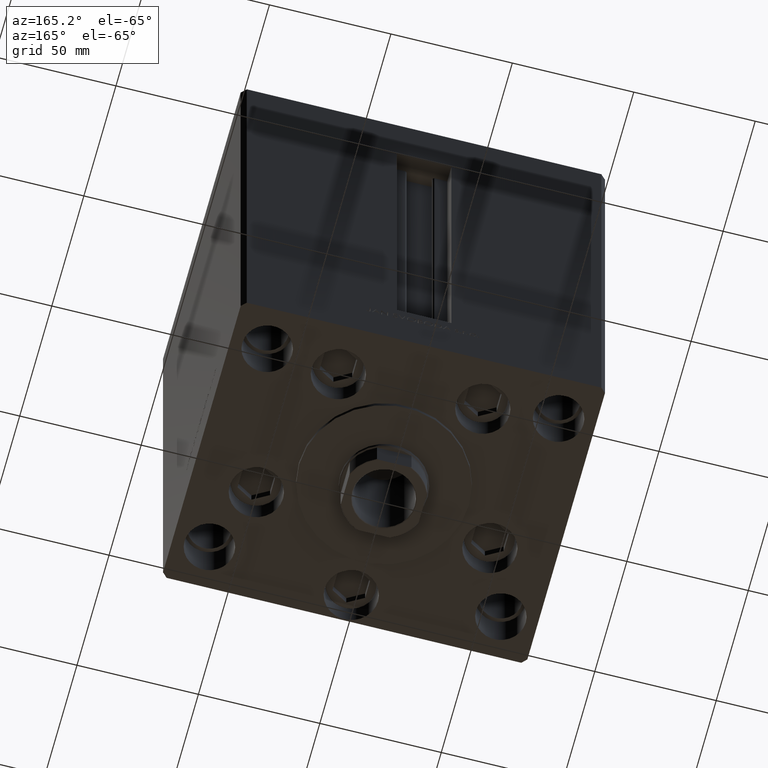
[diagram: clean part render]
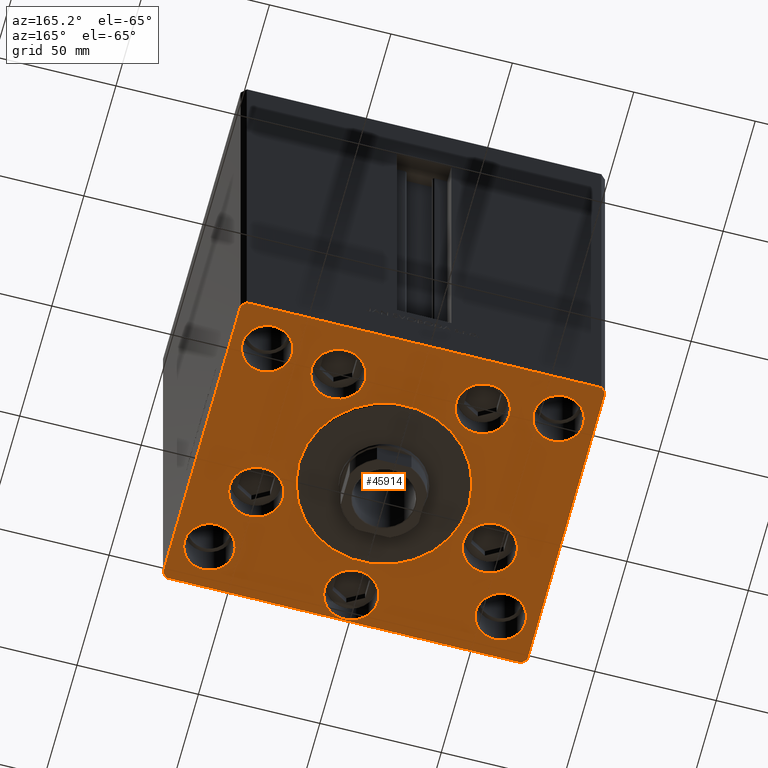
[diagram: same view with one face highlighted and labeled with its STEP entity id]
A machine part, auxiliary view. The second image highlights one B-rep face of the part: STEP entity #45914.
In plain terms, the highlighted planar face has unit normal (0, 0, -1).
Its self-contained STEP definition (entity closure, byte-faithful):
#38 = DIRECTION ( 'NONE',  ( 0.000000000000000000, 0.000000000000000000, 1.000000000000000000 ) ) ;
#225 = FACE_BOUND ( 'NONE', #31982, .T. ) ;
#413 = AXIS2_PLACEMENT_3D ( 'NONE', #3065, #40672, #11201 ) ;
#829 = DIRECTION ( 'NONE',  ( 0.000000000000000000, 0.000000000000000000, 1.000000000000000000 ) ) ;
#955 = ORIENTED_EDGE ( 'NONE', *, *, #39756, .T. ) ;
#974 = ORIENTED_EDGE ( 'NONE', *, *, #17453, .T. ) ;
#1079 = EDGE_CURVE ( 'NONE', #32505, #47432, #31605, .T. ) ;
#1344 = CARTESIAN_POINT ( 'NONE',  ( -37.08326112068522917, -16.99999999999998934, 0.000000000000000000 ) ) ;
#1654 = CARTESIAN_POINT ( 'NONE',  ( -73.00000000000001421, -62.50000000000002842, 0.000000000000000000 ) ) ;
#1753 = DIRECTION ( 'NONE',  ( -0.7071067811865549002, -0.7071067811865401342, 0.000000000000000000 ) ) ;
#1877 = CARTESIAN_POINT ( 'NONE',  ( 73.00000000000001421, 62.50000000000000000, 0.000000000000000000 ) ) ;
#2201 = ORIENTED_EDGE ( 'NONE', *, *, #10339, .F. ) ;
#3024 = VERTEX_POINT ( 'NONE', #28065 ) ;
#3065 = CARTESIAN_POINT ( 'NONE',  ( 48.08326112068523628, -16.99999999999998934, 0.000000000000000000 ) ) ;
#3681 = CARTESIAN_POINT ( 'NONE',  ( -75.00000000000000000, 60.50000000000000000, 0.000000000000000000 ) ) ;
#3737 = DIRECTION ( 'NONE',  ( 0.000000000000000000, 0.000000000000000000, 1.000000000000000000 ) ) ;
#3973 = CARTESIAN_POINT ( 'NONE',  ( 75.00000000000001421, -60.49999999999992184, 0.000000000000000000 ) ) ;
#4195 = FACE_BOUND ( 'NONE', #28672, .T. ) ;
#4367 = DIRECTION ( 'NONE',  ( 0.000000000000000000, 0.000000000000000000, 1.000000000000000000 ) ) ;
#4438 = FACE_BOUND ( 'NONE', #12894, .T. ) ;
#4543 = CARTESIAN_POINT ( 'NONE',  ( 75.00000000000001421, 60.50000000000002842, 0.000000000000000000 ) ) ;
#4618 = CIRCLE ( 'NONE', #18085, 11.00000000000000355 ) ;
#4953 = VERTEX_POINT ( 'NONE', #22083 ) ;
#5439 = VERTEX_POINT ( 'NONE', #47307 ) ;
#5693 = DIRECTION ( 'NONE',  ( 0.7071067811865474617, -0.7071067811865474617, 0.000000000000000000 ) ) ;
#6135 = EDGE_CURVE ( 'NONE', #16602, #11626, #18977, .T. ) ;
#6167 = ORIENTED_EDGE ( 'NONE', *, *, #14656, .F. ) ;
#6360 = CARTESIAN_POINT ( 'NONE',  ( 18.73102073172061921, 41.43749999999997868, 0.000000000000000000 ) ) ;
#6413 = CARTESIAN_POINT ( 'NONE',  ( 75.00000000000001421, -60.49999999999992184, 0.000000000000000000 ) ) ;
#6592 = DIRECTION ( 'NONE',  ( 0.000000000000000000, 0.000000000000000000, 1.000000000000000000 ) ) ;
#7215 = CARTESIAN_POINT ( 'NONE',  ( -35.00000000000000711, -6.938893903907228378E-15, 0.000000000000000000 ) ) ;
#7391 = ORIENTED_EDGE ( 'NONE', *, *, #34233, .F. ) ;
#7521 = CARTESIAN_POINT ( 'NONE',  ( 49.75000000000000000, -45.00000000000000000, 0.000000000000000000 ) ) ;
#7550 = CARTESIAN_POINT ( 'NONE',  ( -59.08326112068523628, -16.99999999999998934, 0.000000000000000000 ) ) ;
#7689 = CARTESIAN_POINT ( 'NONE',  ( 29.73102073172061921, 41.43749999999997868, 0.000000000000000000 ) ) ;
#7745 = CIRCLE ( 'NONE', #17229, 11.00000000000000000 ) ;
#7762 = DIRECTION ( 'NONE',  ( 1.000000000000000000, 0.000000000000000000, 0.000000000000000000 ) ) ;
#7830 = CARTESIAN_POINT ( 'NONE',  ( 49.75000000000000000, 45.00000000000000000, 0.000000000000000000 ) ) ;
#7956 = EDGE_LOOP ( 'NONE', ( #14470, #38288, #974, #48714, #39610, #955, #35941, #15758 ) ) ;
#8395 = FACE_BOUND ( 'NONE', #19430, .T. ) ;
#8454 = EDGE_CURVE ( 'NONE', #47642, #5439, #7745, .T. ) ;
#8814 = AXIS2_PLACEMENT_3D ( 'NONE', #26305, #14194, #48548 ) ;
#9039 = CARTESIAN_POINT ( 'NONE',  ( -70.25000000000000000, 45.00000000000000711, 0.000000000000000000 ) ) ;
#9316 = CIRCLE ( 'NONE', #37737, 10.25000000000000178 ) ;
#9786 = DIRECTION ( 'NONE',  ( -1.000000000000000000, -1.901066822988281950E-16, 0.000000000000000000 ) ) ;
#9811 = CARTESIAN_POINT ( 'NONE',  ( 0.000000000000000000, -6.938893903907228378E-15, 0.000000000000000000 ) ) ;
#9859 = VERTEX_POINT ( 'NONE', #42063 ) ;
#9997 = CIRCLE ( 'NONE', #413, 11.00000000000000355 ) ;
#10339 = EDGE_CURVE ( 'NONE', #42113, #23682, #29155, .T. ) ;
#10455 = DIRECTION ( 'NONE',  ( 1.000000000000000000, 0.000000000000000000, 0.000000000000000000 ) ) ;
#10548 = EDGE_CURVE ( 'NONE', #23682, #42113, #4618, .T. ) ;
#11057 = EDGE_CURVE ( 'NONE', #5439, #47642, #23623, .T. ) ;
#11070 = DIRECTION ( 'NONE',  ( 0.7071067811865489050, 0.7071067811865462405, 0.000000000000000000 ) ) ;
#11151 = DIRECTION ( 'NONE',  ( 1.000000000000000000, 0.000000000000000000, 0.000000000000000000 ) ) ;
#11159 = LINE ( 'NONE', #25546, #23080 ) ;
#11201 = DIRECTION ( 'NONE',  ( 1.000000000000000000, 0.000000000000000000, 0.000000000000000000 ) ) ;
#11541 = CARTESIAN_POINT ( 'NONE',  ( 60.00000000000000711, -45.00000000000000000, 0.000000000000000000 ) ) ;
#11604 = FACE_BOUND ( 'NONE', #26514, .T. ) ;
#11626 = VERTEX_POINT ( 'NONE', #30530 ) ;
#11968 = CARTESIAN_POINT ( 'NONE',  ( 59.08326112068523628, -16.99999999999998934, 0.000000000000000000 ) ) ;
#12571 = CARTESIAN_POINT ( 'NONE',  ( -29.73102073172061921, 41.43749999999997868, 0.000000000000000000 ) ) ;
#12735 = VERTEX_POINT ( 'NONE', #35788 ) ;
#12768 = CIRCLE ( 'NONE', #8814, 10.25000000000000178 ) ;
#12894 = EDGE_LOOP ( 'NONE', ( #34882, #20051 ) ) ;
#13603 = LINE ( 'NONE', #16581, #20961 ) ;
#13879 = VERTEX_POINT ( 'NONE', #14432 ) ;
#14194 = DIRECTION ( 'NONE',  ( 0.000000000000000000, 0.000000000000000000, 1.000000000000000000 ) ) ;
#14386 = CIRCLE ( 'NONE', #18311, 35.00000000000000711 ) ;
#14432 = CARTESIAN_POINT ( 'NONE',  ( 35.00000000000000711, -2.652630106891490698E-15, 0.000000000000000000 ) ) ;
#14455 = DIRECTION ( 'NONE',  ( 1.000000000000000000, 0.000000000000000000, 0.000000000000000000 ) ) ;
#14458 = CARTESIAN_POINT ( 'NONE',  ( -49.75000000000000000, -45.00000000000000000, 0.000000000000000000 ) ) ;
#14470 = ORIENTED_EDGE ( 'NONE', *, *, #37169, .T. ) ;
#14656 = EDGE_CURVE ( 'NONE', #3024, #26227, #20588, .T. ) ;
#14980 = DIRECTION ( 'NONE',  ( 1.000000000000000000, 0.000000000000000000, 0.000000000000000000 ) ) ;
#15290 = CARTESIAN_POINT ( 'NONE',  ( 48.08326112068523628, -16.99999999999998934, 0.000000000000000000 ) ) ;
#15407 = CARTESIAN_POINT ( 'NONE',  ( -29.73102073172061921, 41.43749999999997868, 0.000000000000000000 ) ) ;
#15450 = VECTOR ( 'NONE', #17310, 1000.000000000000000 ) ;
#15758 = ORIENTED_EDGE ( 'NONE', *, *, #23136, .T. ) ;
#16486 = CIRCLE ( 'NONE', #44124, 10.25000000000000178 ) ;
#16581 = CARTESIAN_POINT ( 'NONE',  ( -75.00000000000000000, -60.50000000000004263, 0.000000000000000000 ) ) ;
#16602 = VERTEX_POINT ( 'NONE', #7830 ) ;
#16879 = CIRCLE ( 'NONE', #23215, 11.00000000000000355 ) ;
#16975 = ORIENTED_EDGE ( 'NONE', *, *, #43853, .F. ) ;
#17229 = AXIS2_PLACEMENT_3D ( 'NONE', #15407, #30521, #26810 ) ;
#17280 = CARTESIAN_POINT ( 'NONE',  ( 40.73102073172061921, 41.43749999999997868, 0.000000000000000000 ) ) ;
#17310 = DIRECTION ( 'NONE',  ( 0.000000000000000000, 1.000000000000000000, 0.000000000000000000 ) ) ;
#17453 = EDGE_CURVE ( 'NONE', #36851, #21192, #29656, .T. ) ;
#17753 = DIRECTION ( 'NONE',  ( 0.000000000000000000, 0.000000000000000000, 1.000000000000000000 ) ) ;
#17984 = VERTEX_POINT ( 'NONE', #46116 ) ;
#18085 = AXIS2_PLACEMENT_3D ( 'NONE', #7689, #3737, #11151 ) ;
#18094 = EDGE_CURVE ( 'NONE', #47462, #23053, #12768, .T. ) ;
#18311 = AXIS2_PLACEMENT_3D ( 'NONE', #18955, #22429, #40980 ) ;
#18488 = EDGE_CURVE ( 'NONE', #17984, #36851, #39508, .T. ) ;
#18546 = CIRCLE ( 'NONE', #37509, 11.00000000000000355 ) ;
#18740 = AXIS2_PLACEMENT_3D ( 'NONE', #34391, #19533, #45988 ) ;
#18955 = CARTESIAN_POINT ( 'NONE',  ( 0.000000000000000000, -6.938893903907228378E-15, 0.000000000000000000 ) ) ;
#18977 = CIRCLE ( 'NONE', #46613, 10.24999999999999467 ) ;
#19251 = CIRCLE ( 'NONE', #35853, 10.25000000000000178 ) ;
#19291 = FACE_OUTER_BOUND ( 'NONE', #7956, .T. ) ;
#19377 = EDGE_CURVE ( 'NONE', #42346, #32907, #25468, .T. ) ;
#19409 = ORIENTED_EDGE ( 'NONE', *, *, #22637, .F. ) ;
#19430 = EDGE_LOOP ( 'NONE', ( #19409, #28944 ) ) ;
#19469 = DIRECTION ( 'NONE',  ( 0.000000000000000000, 0.000000000000000000, 1.000000000000000000 ) ) ;
#19533 = DIRECTION ( 'NONE',  ( -0.000000000000000000, 0.000000000000000000, 1.000000000000000000 ) ) ;
#19641 = CARTESIAN_POINT ( 'NONE',  ( 0.000000000000000000, -51.00000000000000000, 0.000000000000000000 ) ) ;
#19998 = DIRECTION ( 'NONE',  ( 1.000000000000000000, 0.000000000000000000, 0.000000000000000000 ) ) ;
#20051 = ORIENTED_EDGE ( 'NONE', *, *, #6135, .F. ) ;
#20099 = ORIENTED_EDGE ( 'NONE', *, *, #36239, .F. ) ;
#20588 = CIRCLE ( 'NONE', #43449, 10.25000000000000178 ) ;
#20652 = VECTOR ( 'NONE', #11070, 999.9999999999998863 ) ;
#20779 = LINE ( 'NONE', #6413, #15450 ) ;
#20816 = EDGE_LOOP ( 'NONE', ( #34629, #6167 ) ) ;
#20961 = VECTOR ( 'NONE', #5693, 1000.000000000000114 ) ;
#21192 = VERTEX_POINT ( 'NONE', #3973 ) ;
#21197 = ORIENTED_EDGE ( 'NONE', *, *, #46724, .F. ) ;
#22083 = CARTESIAN_POINT ( 'NONE',  ( 37.08326112068522917, -16.99999999999998934, 0.000000000000000000 ) ) ;
#22243 = DIRECTION ( 'NONE',  ( 0.000000000000000000, 0.000000000000000000, 1.000000000000000000 ) ) ;
#22341 = VERTEX_POINT ( 'NONE', #3681 ) ;
#22429 = DIRECTION ( 'NONE',  ( 0.000000000000000000, 0.000000000000000000, 1.000000000000000000 ) ) ;
#22561 = VERTEX_POINT ( 'NONE', #24683 ) ;
#22637 = EDGE_CURVE ( 'NONE', #23068, #13879, #14386, .T. ) ;
#22754 = ORIENTED_EDGE ( 'NONE', *, *, #11057, .F. ) ;
#22763 = FACE_BOUND ( 'NONE', #34099, .T. ) ;
#23051 = VECTOR ( 'NONE', #38782, 1000.000000000000000 ) ;
#23053 = VERTEX_POINT ( 'NONE', #9039 ) ;
#23068 = VERTEX_POINT ( 'NONE', #7215 ) ;
#23080 = VECTOR ( 'NONE', #48754, 1000.000000000000000 ) ;
#23136 = EDGE_CURVE ( 'NONE', #22341, #22561, #11159, .T. ) ;
#23215 = AXIS2_PLACEMENT_3D ( 'NONE', #15290, #48938, #34366 ) ;
#23601 = DIRECTION ( 'NONE',  ( 1.000000000000000000, 0.000000000000000000, 0.000000000000000000 ) ) ;
#23623 = CIRCLE ( 'NONE', #29948, 11.00000000000000000 ) ;
#23682 = VERTEX_POINT ( 'NONE', #17280 ) ;
#23716 = CARTESIAN_POINT ( 'NONE',  ( 0.000000000000000000, -51.00000000000000000, 0.000000000000000000 ) ) ;
#24521 = ORIENTED_EDGE ( 'NONE', *, *, #37357, .F. ) ;
#24683 = CARTESIAN_POINT ( 'NONE',  ( -75.00000000000000000, -60.50000000000004263, 0.000000000000000000 ) ) ;
#24830 = CARTESIAN_POINT ( 'NONE',  ( -60.00000000000000000, 45.00000000000000711, 0.000000000000000000 ) ) ;
#24950 = ORIENTED_EDGE ( 'NONE', *, *, #18094, .F. ) ;
#25128 = LINE ( 'NONE', #25612, #35917 ) ;
#25468 = CIRCLE ( 'NONE', #32556, 11.00000000000000355 ) ;
#25546 = CARTESIAN_POINT ( 'NONE',  ( -75.00000000000000000, 60.50000000000000000, 0.000000000000000000 ) ) ;
#25612 = CARTESIAN_POINT ( 'NONE',  ( 75.00000000000001421, 60.50000000000002842, 0.000000000000000000 ) ) ;
#25630 = DIRECTION ( 'NONE',  ( 0.000000000000000000, 0.000000000000000000, 1.000000000000000000 ) ) ;
#25868 = CARTESIAN_POINT ( 'NONE',  ( 60.00000000000000000, 45.00000000000000000, 0.000000000000000000 ) ) ;
#25950 = ORIENTED_EDGE ( 'NONE', *, *, #31007, .F. ) ;
#25951 = CARTESIAN_POINT ( 'NONE',  ( -48.08326112068523628, -16.99999999999998934, 0.000000000000000000 ) ) ;
#26179 = CARTESIAN_POINT ( 'NONE',  ( 73.00000000000001421, -62.49999999999991473, 0.000000000000000000 ) ) ;
#26227 = VERTEX_POINT ( 'NONE', #14458 ) ;
#26305 = CARTESIAN_POINT ( 'NONE',  ( -60.00000000000000000, 45.00000000000000711, 0.000000000000000000 ) ) ;
#26402 = DIRECTION ( 'NONE',  ( 1.000000000000000000, 0.000000000000000000, 0.000000000000000000 ) ) ;
#26488 = VECTOR ( 'NONE', #9786, 1000.000000000000000 ) ;
#26514 = EDGE_LOOP ( 'NONE', ( #16975, #42532 ) ) ;
#26718 = FACE_BOUND ( 'NONE', #37494, .T. ) ;
#26810 = DIRECTION ( 'NONE',  ( 1.000000000000000000, 0.000000000000000000, 0.000000000000000000 ) ) ;
#27679 = DIRECTION ( 'NONE',  ( 0.000000000000000000, 0.000000000000000000, 1.000000000000000000 ) ) ;
#28065 = CARTESIAN_POINT ( 'NONE',  ( -70.25000000000000000, -45.00000000000000000, 0.000000000000000000 ) ) ;
#28289 = VERTEX_POINT ( 'NONE', #11968 ) ;
#28485 = CARTESIAN_POINT ( 'NONE',  ( -72.99999999999998579, 62.49999999999997158, 0.000000000000000000 ) ) ;
#28672 = EDGE_LOOP ( 'NONE', ( #25950, #20099 ) ) ;
#28689 = CARTESIAN_POINT ( 'NONE',  ( -11.00000000000000000, -51.00000000000000000, 0.000000000000000000 ) ) ;
#28944 = ORIENTED_EDGE ( 'NONE', *, *, #41363, .F. ) ;
#29060 = CARTESIAN_POINT ( 'NONE',  ( -18.73102073172061921, 41.43749999999997868, 0.000000000000000000 ) ) ;
#29155 = CIRCLE ( 'NONE', #35452, 11.00000000000000355 ) ;
#29523 = CARTESIAN_POINT ( 'NONE',  ( -60.00000000000000711, -45.00000000000000000, 0.000000000000000000 ) ) ;
#29558 = DIRECTION ( 'NONE',  ( 0.000000000000000000, 0.000000000000000000, 1.000000000000000000 ) ) ;
#29648 = VECTOR ( 'NONE', #1753, 1000.000000000000000 ) ;
#29656 = LINE ( 'NONE', #26179, #20652 ) ;
#29800 = CARTESIAN_POINT ( 'NONE',  ( -48.08326112068523628, -16.99999999999998934, 0.000000000000000000 ) ) ;
#29937 = EDGE_CURVE ( 'NONE', #32907, #42346, #18546, .T. ) ;
#29948 = AXIS2_PLACEMENT_3D ( 'NONE', #12571, #27679, #45965 ) ;
#30092 = CARTESIAN_POINT ( 'NONE',  ( 29.73102073172061921, 41.43749999999997868, 0.000000000000000000 ) ) ;
#30363 = CARTESIAN_POINT ( 'NONE',  ( 70.25000000000000000, -45.00000000000000000, 0.000000000000000000 ) ) ;
#30521 = DIRECTION ( 'NONE',  ( 0.000000000000000000, 0.000000000000000000, 1.000000000000000000 ) ) ;
#30530 = CARTESIAN_POINT ( 'NONE',  ( 70.25000000000000000, 45.00000000000000000, 0.000000000000000000 ) ) ;
#30839 = DIRECTION ( 'NONE',  ( 0.000000000000000000, 0.000000000000000000, 1.000000000000000000 ) ) ;
#30921 = VERTEX_POINT ( 'NONE', #7521 ) ;
#31007 = EDGE_CURVE ( 'NONE', #39562, #30921, #39103, .T. ) ;
#31605 = CIRCLE ( 'NONE', #47357, 11.00000000000000000 ) ;
#31867 = DIRECTION ( 'NONE',  ( 0.000000000000000000, 0.000000000000000000, 1.000000000000000000 ) ) ;
#31896 = EDGE_CURVE ( 'NONE', #11626, #16602, #40729, .T. ) ;
#31982 = EDGE_LOOP ( 'NONE', ( #7391, #24521 ) ) ;
#32045 = AXIS2_PLACEMENT_3D ( 'NONE', #25868, #25630, #44873 ) ;
#32110 = AXIS2_PLACEMENT_3D ( 'NONE', #19641, #34743, #23601 ) ;
#32505 = VERTEX_POINT ( 'NONE', #28689 ) ;
#32556 = AXIS2_PLACEMENT_3D ( 'NONE', #25951, #22243, #37325 ) ;
#32907 = VERTEX_POINT ( 'NONE', #7550 ) ;
#33583 = CARTESIAN_POINT ( 'NONE',  ( 60.00000000000000000, 45.00000000000000000, 0.000000000000000000 ) ) ;
#33716 = EDGE_LOOP ( 'NONE', ( #24950, #21197 ) ) ;
#34054 = CARTESIAN_POINT ( 'NONE',  ( -60.00000000000000711, -45.00000000000000000, 0.000000000000000000 ) ) ;
#34099 = EDGE_LOOP ( 'NONE', ( #35000, #22754 ) ) ;
#34233 = EDGE_CURVE ( 'NONE', #28289, #4953, #9997, .T. ) ;
#34366 = DIRECTION ( 'NONE',  ( 1.000000000000000000, 0.000000000000000000, 0.000000000000000000 ) ) ;
#34391 = CARTESIAN_POINT ( 'NONE',  ( 0.000000000000000000, 0.000000000000000000, 0.000000000000000000 ) ) ;
#34497 = CARTESIAN_POINT ( 'NONE',  ( 60.00000000000000711, -45.00000000000000000, 0.000000000000000000 ) ) ;
#34570 = DIRECTION ( 'NONE',  ( 1.000000000000000000, 0.000000000000000000, 0.000000000000000000 ) ) ;
#34629 = ORIENTED_EDGE ( 'NONE', *, *, #36863, .F. ) ;
#34634 = PLANE ( 'NONE',  #18740 ) ;
#34743 = DIRECTION ( 'NONE',  ( 0.000000000000000000, 0.000000000000000000, 1.000000000000000000 ) ) ;
#34882 = ORIENTED_EDGE ( 'NONE', *, *, #31896, .F. ) ;
#35000 = ORIENTED_EDGE ( 'NONE', *, *, #8454, .F. ) ;
#35015 = CARTESIAN_POINT ( 'NONE',  ( -49.74999999999999289, 45.00000000000000711, 0.000000000000000000 ) ) ;
#35452 = AXIS2_PLACEMENT_3D ( 'NONE', #30092, #17753, #14980 ) ;
#35788 = CARTESIAN_POINT ( 'NONE',  ( -72.99999999999998579, 62.49999999999997158, 0.000000000000000000 ) ) ;
#35853 = AXIS2_PLACEMENT_3D ( 'NONE', #34054, #30839, #42197 ) ;
#35917 = VECTOR ( 'NONE', #43658, 1000.000000000000000 ) ;
#35941 = ORIENTED_EDGE ( 'NONE', *, *, #36607, .T. ) ;
#36215 = DIRECTION ( 'NONE',  ( 1.000000000000000000, 0.000000000000000000, 0.000000000000000000 ) ) ;
#36239 = EDGE_CURVE ( 'NONE', #30921, #39562, #16486, .T. ) ;
#36399 = LINE ( 'NONE', #28485, #29648 ) ;
#36607 = EDGE_CURVE ( 'NONE', #12735, #22341, #36399, .T. ) ;
#36851 = VERTEX_POINT ( 'NONE', #45398 ) ;
#36863 = EDGE_CURVE ( 'NONE', #26227, #3024, #19251, .T. ) ;
#37169 = EDGE_CURVE ( 'NONE', #22561, #17984, #13603, .T. ) ;
#37325 = DIRECTION ( 'NONE',  ( 1.000000000000000000, 0.000000000000000000, 0.000000000000000000 ) ) ;
#37357 = EDGE_CURVE ( 'NONE', #4953, #28289, #16879, .T. ) ;
#37426 = ORIENTED_EDGE ( 'NONE', *, *, #19377, .F. ) ;
#37494 = EDGE_LOOP ( 'NONE', ( #37426, #47529 ) ) ;
#37509 = AXIS2_PLACEMENT_3D ( 'NONE', #29800, #29558, #14455 ) ;
#37737 = AXIS2_PLACEMENT_3D ( 'NONE', #24830, #39917, #36215 ) ;
#38087 = FACE_BOUND ( 'NONE', #20816, .T. ) ;
#38288 = ORIENTED_EDGE ( 'NONE', *, *, #18488, .T. ) ;
#38323 = AXIS2_PLACEMENT_3D ( 'NONE', #34497, #829, #7762 ) ;
#38331 = FACE_BOUND ( 'NONE', #42143, .T. ) ;
#38773 = EDGE_CURVE ( 'NONE', #43836, #9859, #25128, .T. ) ;
#38782 = DIRECTION ( 'NONE',  ( 1.000000000000000000, 7.604267291953125828E-16, 0.000000000000000000 ) ) ;
#39103 = CIRCLE ( 'NONE', #38323, 10.25000000000000178 ) ;
#39508 = LINE ( 'NONE', #1654, #23051 ) ;
#39562 = VERTEX_POINT ( 'NONE', #30363 ) ;
#39610 = ORIENTED_EDGE ( 'NONE', *, *, #38773, .T. ) ;
#39756 = EDGE_CURVE ( 'NONE', #9859, #12735, #46649, .T. ) ;
#39917 = DIRECTION ( 'NONE',  ( 0.000000000000000000, 0.000000000000000000, 1.000000000000000000 ) ) ;
#39992 = DIRECTION ( 'NONE',  ( 1.000000000000000000, 0.000000000000000000, 0.000000000000000000 ) ) ;
#40672 = DIRECTION ( 'NONE',  ( 0.000000000000000000, 0.000000000000000000, 1.000000000000000000 ) ) ;
#40729 = CIRCLE ( 'NONE', #32045, 10.24999999999999467 ) ;
#40980 = DIRECTION ( 'NONE',  ( 1.000000000000000000, 0.000000000000000000, 0.000000000000000000 ) ) ;
#41088 = EDGE_CURVE ( 'NONE', #21192, #43836, #20779, .T. ) ;
#41363 = EDGE_CURVE ( 'NONE', #13879, #23068, #43072, .T. ) ;
#41520 = AXIS2_PLACEMENT_3D ( 'NONE', #9811, #6592, #39992 ) ;
#41795 = FACE_BOUND ( 'NONE', #33716, .T. ) ;
#42063 = CARTESIAN_POINT ( 'NONE',  ( 73.00000000000001421, 62.50000000000000000, 0.000000000000000000 ) ) ;
#42113 = VERTEX_POINT ( 'NONE', #6360 ) ;
#42143 = EDGE_LOOP ( 'NONE', ( #45061, #2201 ) ) ;
#42197 = DIRECTION ( 'NONE',  ( 1.000000000000000000, 0.000000000000000000, 0.000000000000000000 ) ) ;
#42346 = VERTEX_POINT ( 'NONE', #1344 ) ;
#42532 = ORIENTED_EDGE ( 'NONE', *, *, #1079, .F. ) ;
#43072 = CIRCLE ( 'NONE', #41520, 35.00000000000000711 ) ;
#43449 = AXIS2_PLACEMENT_3D ( 'NONE', #29523, #38, #10455 ) ;
#43658 = DIRECTION ( 'NONE',  ( -0.7071067811865524577, 0.7071067811865426878, 0.000000000000000000 ) ) ;
#43836 = VERTEX_POINT ( 'NONE', #4543 ) ;
#43853 = EDGE_CURVE ( 'NONE', #47432, #32505, #47084, .T. ) ;
#44124 = AXIS2_PLACEMENT_3D ( 'NONE', #11541, #19469, #34570 ) ;
#44873 = DIRECTION ( 'NONE',  ( 1.000000000000000000, 0.000000000000000000, 0.000000000000000000 ) ) ;
#45061 = ORIENTED_EDGE ( 'NONE', *, *, #10548, .F. ) ;
#45398 = CARTESIAN_POINT ( 'NONE',  ( 73.00000000000001421, -62.49999999999991473, 0.000000000000000000 ) ) ;
#45914 = ADVANCED_FACE ( 'NONE', ( #8395, #22763, #38331, #225, #11604, #26718, #4438, #41795, #38087, #4195, #19291 ), #34634, .T. ) ;
#45965 = DIRECTION ( 'NONE',  ( 1.000000000000000000, 0.000000000000000000, 0.000000000000000000 ) ) ;
#45988 = DIRECTION ( 'NONE',  ( 1.000000000000000000, 0.000000000000000000, 0.000000000000000000 ) ) ;
#46116 = CARTESIAN_POINT ( 'NONE',  ( -73.00000000000001421, -62.50000000000002842, 0.000000000000000000 ) ) ;
#46613 = AXIS2_PLACEMENT_3D ( 'NONE', #33583, #4367, #26402 ) ;
#46649 = LINE ( 'NONE', #1877, #26488 ) ;
#46724 = EDGE_CURVE ( 'NONE', #23053, #47462, #9316, .T. ) ;
#47084 = CIRCLE ( 'NONE', #32110, 11.00000000000000000 ) ;
#47085 = CARTESIAN_POINT ( 'NONE',  ( 11.00000000000000000, -51.00000000000000000, 0.000000000000000000 ) ) ;
#47307 = CARTESIAN_POINT ( 'NONE',  ( -40.73102073172061921, 41.43749999999997868, 0.000000000000000000 ) ) ;
#47357 = AXIS2_PLACEMENT_3D ( 'NONE', #23716, #31867, #19998 ) ;
#47432 = VERTEX_POINT ( 'NONE', #47085 ) ;
#47462 = VERTEX_POINT ( 'NONE', #35015 ) ;
#47529 = ORIENTED_EDGE ( 'NONE', *, *, #29937, .F. ) ;
#47642 = VERTEX_POINT ( 'NONE', #29060 ) ;
#48548 = DIRECTION ( 'NONE',  ( 1.000000000000000000, 0.000000000000000000, 0.000000000000000000 ) ) ;
#48714 = ORIENTED_EDGE ( 'NONE', *, *, #41088, .T. ) ;
#48754 = DIRECTION ( 'NONE',  ( 0.000000000000000000, -1.000000000000000000, 0.000000000000000000 ) ) ;
#48938 = DIRECTION ( 'NONE',  ( 0.000000000000000000, 0.000000000000000000, 1.000000000000000000 ) ) ;